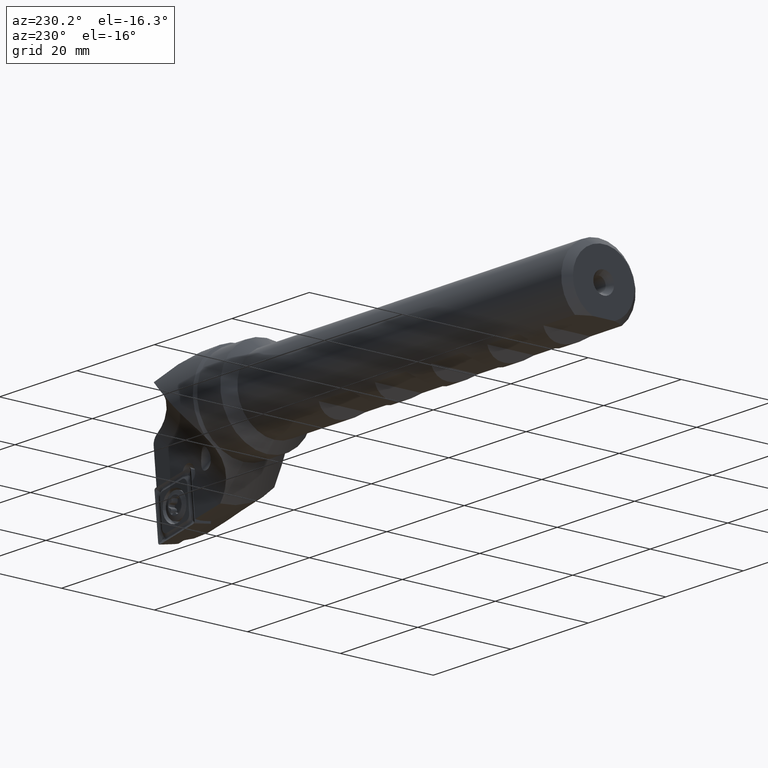
[diagram: clean part render]
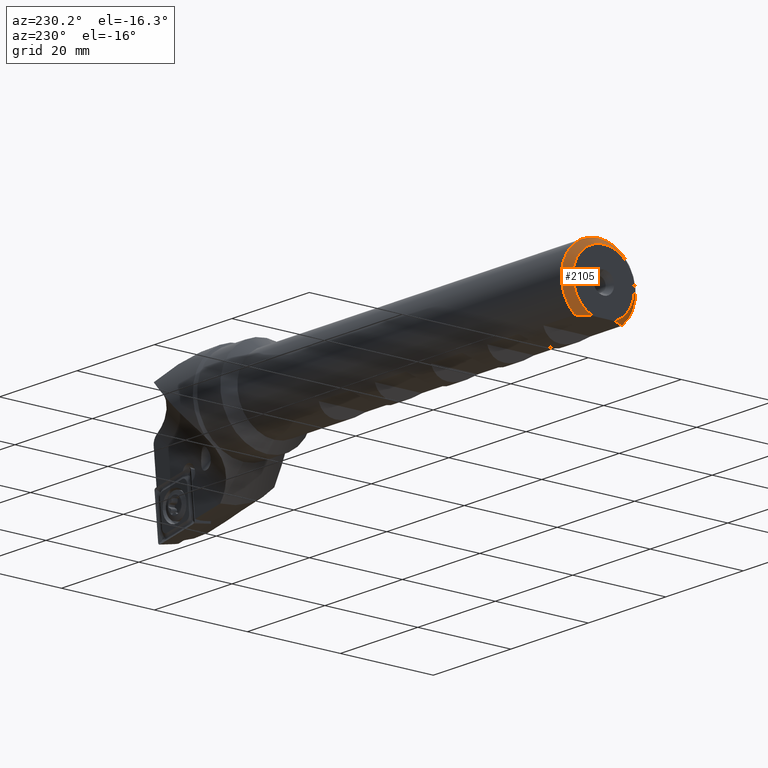
[diagram: same view with one face highlighted and labeled with its STEP entity id]
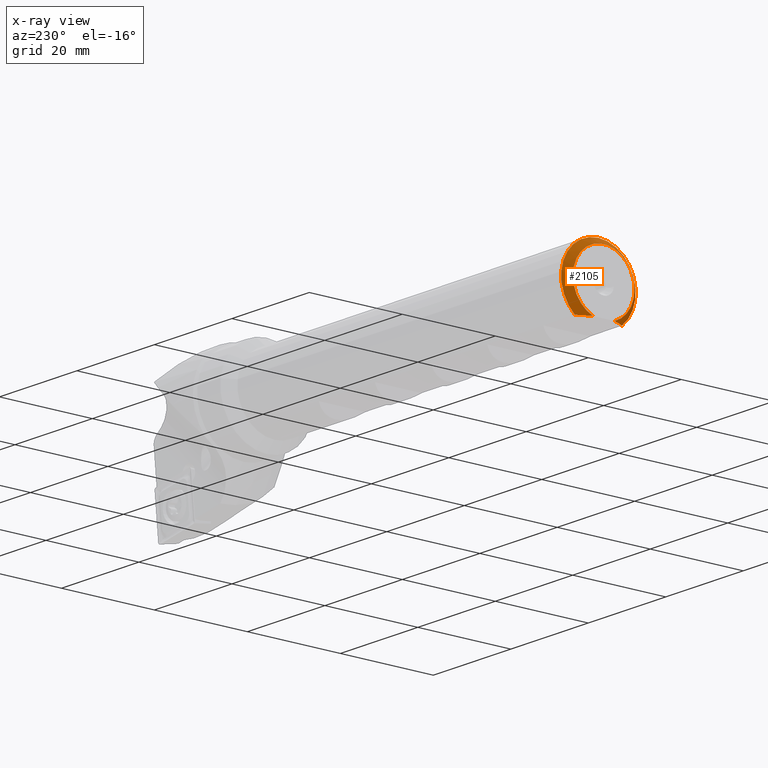
[diagram: x-ray of the same camera — body ghosted, the highlighted face saturated]
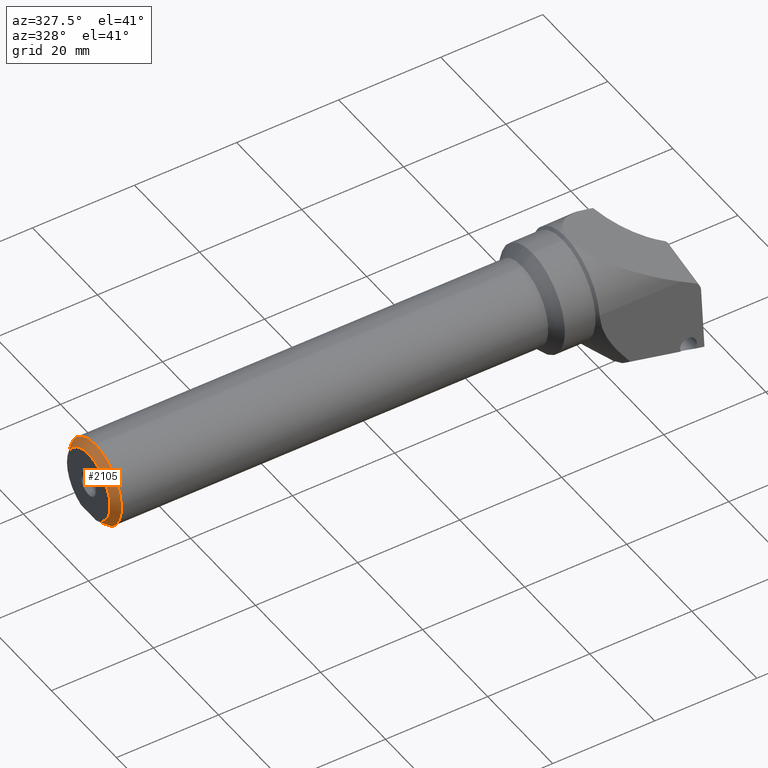
[diagram: same view with one face highlighted and labeled with its STEP entity id]
A machine part, auxiliary view. The second image highlights one B-rep face of the part: STEP entity #2105.
The next image is the same camera in x-ray: the body ghosted, the highlighted face saturated — about 0% of this face is hidden behind the body in this view.
A second angle (auxiliary view) of the same face is appended — the face is thin or edge-on in the first view.
In plain terms, the highlighted conical surface has half-angle 45 deg.
Its self-contained STEP definition (entity closure, byte-faithful):
#86 = CARTESIAN_POINT ( 'NONE',  ( 1.375000000000003600, 5.055689863905846500, -6.199999999999997500 ) ) ;
#106 = CARTESIAN_POINT ( 'NONE',  ( 1.374999999999999600, 0.0000000000000000000, 8.000000000000000000 ) ) ;
#524 = CARTESIAN_POINT ( 'NONE',  ( 0.0000000000000000000, -2.334657362441031400, -6.199999999999997500 ) ) ;
#527 = CARTESIAN_POINT ( 'NONE',  ( 2.357445088358658700E-016, 2.334657362441032300, -6.199999999999997500 ) ) ;
#675 = AXIS2_PLACEMENT_3D ( 'NONE', #3110, #3111, #3112 ) ;
#684 = AXIS2_PLACEMENT_3D ( 'NONE', #3187, #3188, #3189 ) ;
#758 = AXIS2_PLACEMENT_3D ( 'NONE', #4004, #4005, #4006 ) ;
#1066 = ORIENTED_EDGE ( 'NONE', *, *, #5119, .T. ) ;
#1067 = ORIENTED_EDGE ( 'NONE', *, *, #2218, .T. ) ;
#1068 = ORIENTED_EDGE ( 'NONE', *, *, #2239, .T. ) ;
#1069 = ORIENTED_EDGE ( 'NONE', *, *, #2240, .F. ) ;
#1070 = ORIENTED_EDGE ( 'NONE', *, *, #2241, .T. ) ;
#1358 = VERTEX_POINT ( 'NONE', #106 ) ;
#1378 = VERTEX_POINT ( 'NONE', #86 ) ;
#1409 = VERTEX_POINT ( 'NONE', #2351 ) ;
#1422 = VERTEX_POINT ( 'NONE', #527 ) ;
#1424 = VERTEX_POINT ( 'NONE', #524 ) ;
#1575 = FACE_OUTER_BOUND ( 'NONE', #4699, .T. ) ;
#1583 = CONICAL_SURFACE ( 'NONE', #2015, 8.000000000000000000, 0.7853981633974463900 ) ;
#1760 = CIRCLE ( 'NONE', #675, 8.000000000000000000 ) ;
#1791 = CIRCLE ( 'NONE', #684, 6.625000000000006200 ) ;
#2015 = AXIS2_PLACEMENT_3D ( 'NONE', #2719, #2718, #2711 ) ;
#2105 = ADVANCED_FACE ( 'NONE', ( #1575 ), #1583, .T. ) ;
#2218 = EDGE_CURVE ( 'NONE', #1358, #1378, #1760, .T. ) ;
#2239 = EDGE_CURVE ( 'NONE', #1378, #1422, #5033, .T. ) ;
#2240 = EDGE_CURVE ( 'NONE', #1424, #1422, #1791, .T. ) ;
#2241 = EDGE_CURVE ( 'NONE', #1424, #1409, #5207, .T. ) ;
#2351 = CARTESIAN_POINT ( 'NONE',  ( 1.374999999999999600, -5.055689863905819000, -6.199999999999997500 ) ) ;
#2711 = DIRECTION ( 'NONE',  ( 0.0000000000000000000, 0.0000000000000000000, -1.000000000000000000 ) ) ;
#2718 = DIRECTION ( 'NONE',  ( 1.000000000000000000, 0.0000000000000000000, 0.0000000000000000000 ) ) ;
#2719 = CARTESIAN_POINT ( 'NONE',  ( 1.374999999999999600, 0.0000000000000000000, 0.0000000000000000000 ) ) ;
#3110 = CARTESIAN_POINT ( 'NONE',  ( 1.374999999999999600, 0.0000000000000000000, 0.0000000000000000000 ) ) ;
#3111 = DIRECTION ( 'NONE',  ( -1.000000000000000000, -0.0000000000000000000, -0.0000000000000000000 ) ) ;
#3112 = DIRECTION ( 'NONE',  ( 0.0000000000000000000, 0.0000000000000000000, 1.000000000000000000 ) ) ;
#3169 = CARTESIAN_POINT ( 'NONE',  ( 1.375000000000003600, 5.055689863905846500, -6.199999999999997500 ) ) ;
#3177 = CARTESIAN_POINT ( 'NONE',  ( 1.102759812682804700, 4.624903649330749800, -6.199999999999995700 ) ) ;
#3181 = CARTESIAN_POINT ( 'NONE',  ( 0.8443957044948030600, 4.183512899218850800, -6.199999999999998400 ) ) ;
#3182 = CARTESIAN_POINT ( 'NONE',  ( 0.3783296866794281800, 3.279715641321743600, -6.199999999999994800 ) ) ;
#3183 = CARTESIAN_POINT ( 'NONE',  ( 0.1697391835517378700, 2.816322085119876900, -6.199999999999997500 ) ) ;
#3184 = CARTESIAN_POINT ( 'NONE',  ( 2.357445088358658700E-016, 2.334657362441032300, -6.199999999999997500 ) ) ;
#3185 = CARTESIAN_POINT ( 'NONE',  ( 0.1714315222812203600, -2.821124393271456500, -6.199999999999995700 ) ) ;
#3186 = CARTESIAN_POINT ( 'NONE',  ( 0.0000000000000000000, -2.334657362441031400, -6.199999999999997500 ) ) ;
#3187 = CARTESIAN_POINT ( 'NONE',  ( 0.0000000000000000000, 0.0000000000000000000, 0.0000000000000000000 ) ) ;
#3188 = DIRECTION ( 'NONE',  ( -1.000000000000000000, -0.0000000000000000000, -0.0000000000000000000 ) ) ;
#3189 = DIRECTION ( 'NONE',  ( 0.0000000000000000000, 0.0000000000000000000, 1.000000000000000000 ) ) ;
#3191 = CARTESIAN_POINT ( 'NONE',  ( 0.3815471660728584900, -3.286497594889470400, -6.199999999999998400 ) ) ;
#3192 = CARTESIAN_POINT ( 'NONE',  ( 0.8475333585746163100, -4.189047391212126200, -6.199999999999994800 ) ) ;
#3193 = CARTESIAN_POINT ( 'NONE',  ( 1.103883033249896600, -4.626681006086924300, -6.199999999999997500 ) ) ;
#3194 = CARTESIAN_POINT ( 'NONE',  ( 1.374999999999999600, -5.055689863905819000, -6.199999999999997500 ) ) ;
#4004 = CARTESIAN_POINT ( 'NONE',  ( 1.374999999999999600, 0.0000000000000000000, 0.0000000000000000000 ) ) ;
#4005 = DIRECTION ( 'NONE',  ( -1.000000000000000000, -0.0000000000000000000, -0.0000000000000000000 ) ) ;
#4006 = DIRECTION ( 'NONE',  ( 0.0000000000000000000, 0.0000000000000000000, 1.000000000000000000 ) ) ;
#4384 = CIRCLE ( 'NONE', #758, 8.000000000000000000 ) ;
#4699 = EDGE_LOOP ( 'NONE', ( #1066, #1067, #1068, #1069, #1070 ) ) ;
#5033 = B_SPLINE_CURVE_WITH_KNOTS ( 'NONE', 3,
 ( #3169, #3177, #3181, #3182, #3183, #3184 ),
 .UNSPECIFIED., .F., .F.,
 ( 4, 2, 4 ),
 ( 0.01498964033621598100, 0.01651543360208722700, 0.01804122686795847300 ),
 .UNSPECIFIED. ) ;
#5119 = EDGE_CURVE ( 'NONE', #1409, #1358, #4384, .T. ) ;
#5207 = B_SPLINE_CURVE_WITH_KNOTS ( 'NONE', 3,
 ( #3186, #3185, #3191, #3192, #3193, #3194 ),
 .UNSPECIFIED., .F., .F.,
 ( 4, 2, 4 ),
 ( 0.02280706587486892900, 0.02434375454163165800, 0.02588044320839438500 ),
 .UNSPECIFIED. ) ;